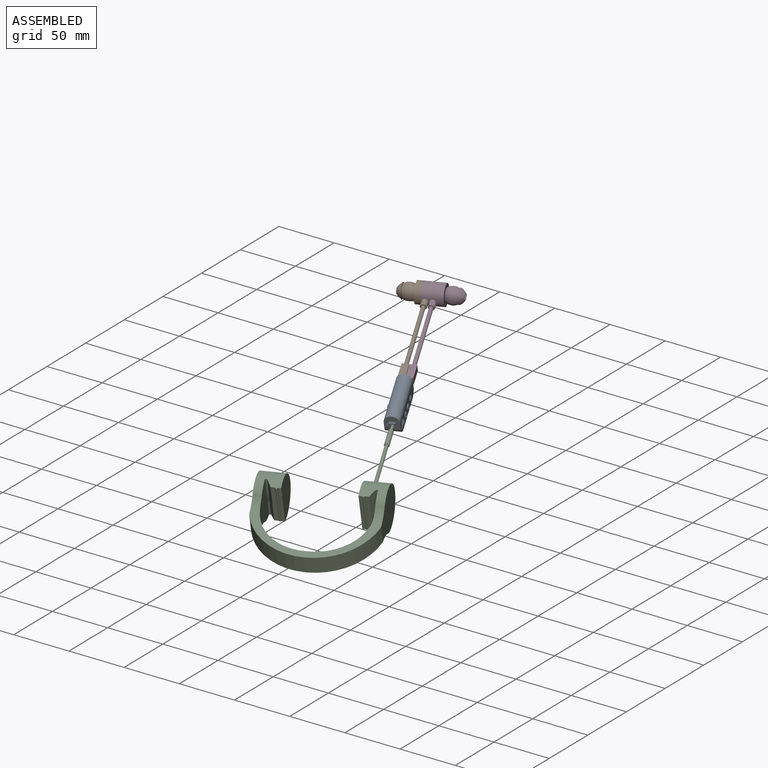
[diagram: assembled view]
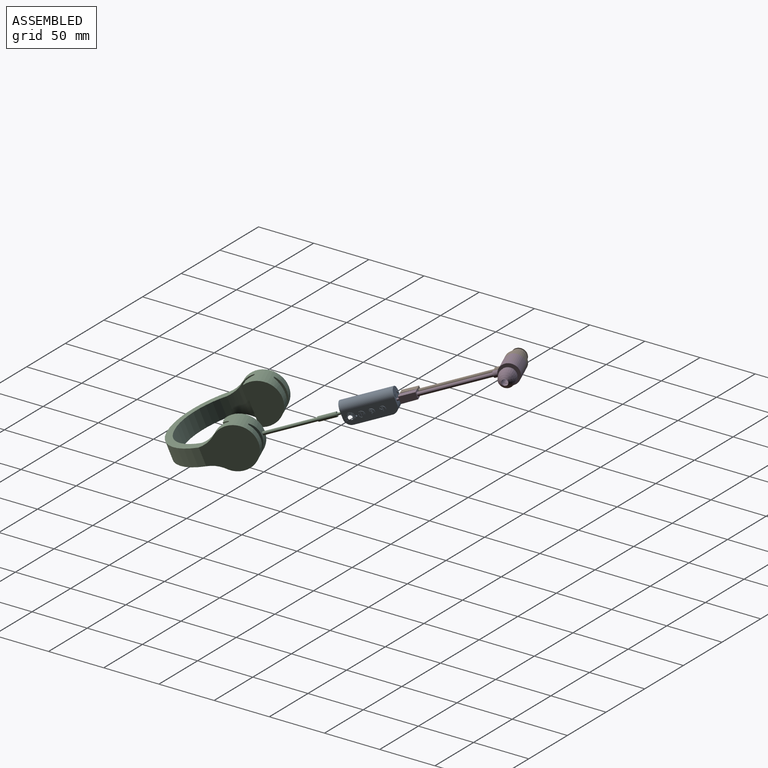
[diagram: assembled view, second angle]
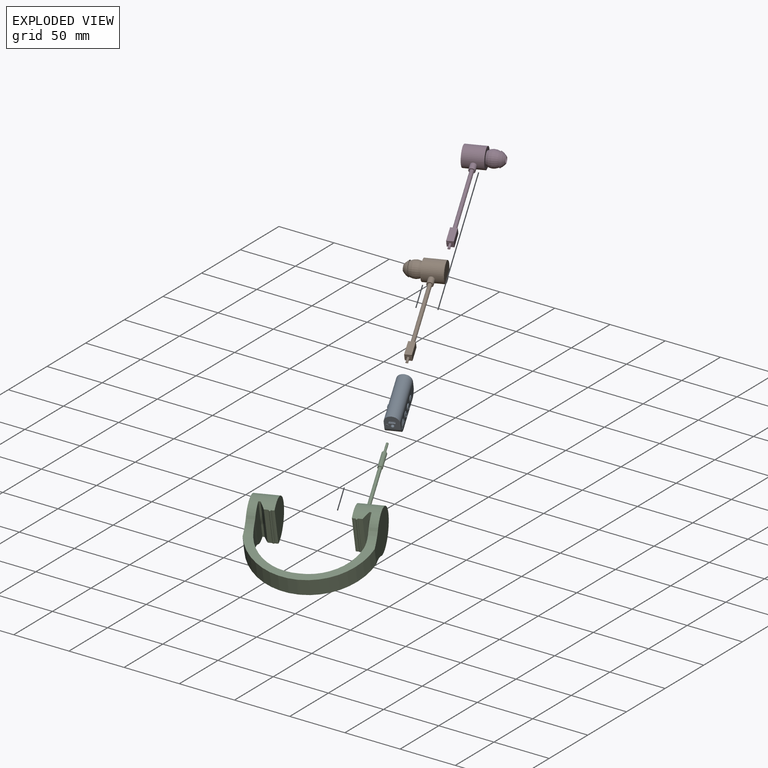
[diagram: exploded view]
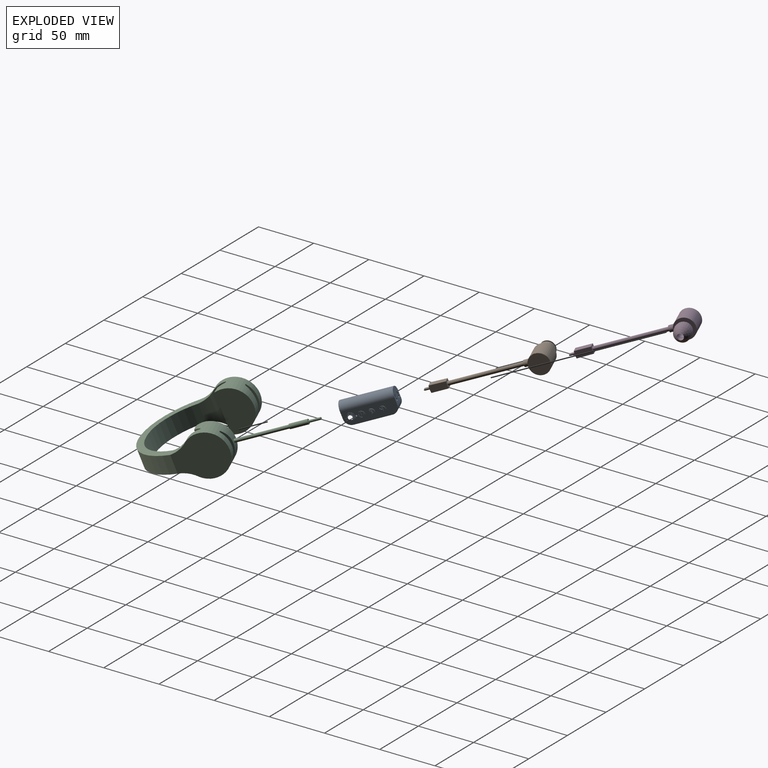
[diagram: exploded view, second angle]
ASSEMBLY  parts=4 mates=3
PART A: 240 faces, bbox 45.3x15.4x19.1 mm
  f0: plane 44.45x12.7mm, normal (0,1,0), area 521.5mm2, adj f2,f26,f27,f28,f29,f30,f219,f221
  f1: plane 44.45x12.7mm, normal (0,-1,0), area 446mm2, adj f2,f4,f5,f6,f7,f8,f9,f10
  f2: plane 12.7x12.7mm, normal (-1,0,0), area 125.9mm2, adj f0,f1,f28,f29,f150,f151,f152,f157
  f3: plane 3.99x3.99mm, normal (0,-1,0), area 11.4mm2, adj f115,f116,f117,f118,f119
  f4: cylinder r=2.75mm len=0.71mm, axis (0,1,0), area 0.2mm2, adj f1,f24,f112,f113
  f5: cylinder r=2.75mm len=0.71mm, axis (0,1,0), area 0.2mm2, adj f1,f24,f110,f111
  f6: cylinder r=2.75mm len=0.71mm, axis (0,1,0), area 0.2mm2, adj f1,f24,f108,f109
  f7: cylinder r=2.75mm len=0.71mm, axis (0,1,0), area 0.2mm2, adj f1,f24,f106,f107
  f8: cylinder r=2.75mm len=0.71mm, axis (0,1,0), area 0.2mm2, adj f1,f24,f104,f105
  f9: cylinder r=2.75mm len=0.71mm, axis (0,1,0), area 0.2mm2, adj f1,f24,f102,f103
  f10: cylinder r=2.75mm len=0.71mm, axis (0,1,0), area 0.2mm2, adj f1,f24,f100,f101
  f11: cylinder r=2.75mm len=0.71mm, axis (0,1,0), area 0.2mm2, adj f1,f24,f80,f99
  f12: cylinder r=2.75mm len=0.71mm, axis (0,1,0), area 0.2mm2, adj f1,f24,f96,f97
  f13: cylinder r=2.75mm len=0.71mm, axis (0,1,0), area 0.2mm2, adj f1,f24,f95,f114
  f14: cylinder r=2.75mm len=0.71mm, axis (0,1,0), area 0.2mm2, adj f1,f24,f93,f98
  f15: cylinder r=2.75mm len=0.71mm, axis (0,1,0), area 0.2mm2, adj f1,f24,f91,f94
  f16: cylinder r=2.75mm len=0.71mm, axis (0,1,0), area 0.2mm2, adj f1,f24,f88,f89
  f17: cylinder r=2.75mm len=0.71mm, axis (0,1,0), area 0.2mm2, adj f1,f24,f86,f87
  f18: cylinder r=2.75mm len=0.71mm, axis (0,1,0), area 0.2mm2, adj f1,f24,f84,f85
  f19: cylinder r=2.75mm len=0.71mm, axis (0,1,0), area 0.2mm2, adj f1,f24,f83,f92
  f20: cylinder r=2.75mm len=0.71mm, axis (0,1,0), area 0.2mm2, adj f1,f24,f78,f81
  f21: cylinder r=2.75mm len=0.71mm, axis (0,1,0), area 0.2mm2, adj f1,f24,f79,f82
  f22: cylinder r=2.75mm len=0.71mm, axis (0,1,0), area 0.2mm2, adj f1,f24,f76,f77
  f23: cylinder r=2.75mm len=0.71mm, axis (0,1,0), area 0.2mm2, adj f1,f24,f75,f90
  f24: plane 5.46x5.46mm, normal (0,-1,0), area 7.8mm2, adj f4,f5,f6,f7,f8,f9,f10,f11
  f25: plane 5.7x5.7mm, normal (0,-1,0), area 22.5mm2, adj f62,f63,f64,f65,f66,f68,f69,f70
  f26: plane 12.7x12.7mm, normal (1,0,0), area 134.1mm2, adj f0,f1,f28,f30,f31,f33,f35,f36
  f27: plane 31.75x12.7mm, normal (0,0,-1), area 403.2mm2, adj f0,f1,f29,f30
  f28: cylinder r=6.35mm len=44.45mm, axis (-1,0,0), area 886.7mm2, adj f0,f1,f2,f26
  f29: cylinder r=6.35mm len=12.7mm, axis (0,1,0), area 126.7mm2, adj f0,f1,f2,f27
  f30: cylinder r=6.35mm len=12.7mm, axis (0,1,0), area 126.7mm2, adj f0,f1,f26,f27
  f31: cylinder r=1.03mm len=10.16mm, axis (1,0,0), area 65.7mm2, adj f26,f32
  f32: plane 2.06x2.06mm, normal (1,0,0), area 3.3mm2, adj f31
  f33: cylinder r=1.03mm len=10.16mm, axis (1,0,0), area 65.7mm2, adj f26,f34
  f34: plane 2.06x2.06mm, normal (1,0,0), area 3.3mm2, adj f33
  f35: plane 2.22x0.51mm, normal (0,-1,0), area 1.1mm2, adj f26,f36,f40,f41
  f36: plane 1.24x0.51mm, normal (0,0,-1), area 0.6mm2, adj f26,f35,f37,f41
  f37: plane 0.51x0.23mm, normal (0,1,0), area 0.1mm2, adj f26,f36,f38,f41
  f38: plane 0.98x0.51mm, normal (0,0,1), area 0.5mm2, adj f26,f37,f39,f41
  f39: plane 1.98x0.51mm, normal (0,1,0), area 1mm2, adj f26,f38,f40,f41
  f40: plane 0.51x0.26mm, normal (0,0,1), area 0.1mm2, adj f26,f35,f39,f41
  f41: plane 2.22x1.24mm, normal (1,0,0), area 0.8mm2, adj f35,f36,f37,f38,f39,f40
  f42: plane 0.51x0.37mm, normal (0,0,1), area 0.2mm2, adj f43,f59,f60,f61
  f43: plane 0.9x0.51mm, normal (0,1,0), area 0.5mm2, adj f42,f44,f60,f61
  f44: plane 0.51x0.36mm, normal (0,0,-1), area 0.2mm2, adj f43,f45,f60,f61
  f45: extruded ~0.51x0.44mm, area 0.2mm2, adj f44,f46,f60,f61
  f46: extruded ~0.51x0.34mm, area 0.2mm2, adj f45,f47,f60,f61
  f47: extruded ~0.51x0.34mm, area 0.2mm2, adj f46,f59,f60,f61
  f48: plane 0.98x0.51mm, normal (0,1,0), area 0.5mm2, adj f26,f49,f58,f60
  f49: plane 0.51x0.49mm, normal (0,0,-1), area 0.2mm2, adj f26,f48,f50,f60
  f50: plane 0.98x0.57mm, normal (0,-0.86,-0.5), area 0.6mm2, adj f26,f49,f51,f60
  f51: plane 0.51x0.32mm, normal (0,0,-1), area 0.2mm2, adj f26,f50,f52,f60
  f52: plane 1.06x0.64mm, normal (0,0.86,0.52), area 0.6mm2, adj f26,f51,f53,f60
  f53: extruded ~0.63x0.51mm, area 0.4mm2, adj f26,f52,f54,f60
  f54: extruded ~0.51x0.5mm, area 0.3mm2, adj f26,f53,f55,f60
  f55: extruded ~0.64x0.51mm, area 0.3mm2, adj f26,f54,f56,f60
  f56: plane 0.64x0.51mm, normal (0,0,1), area 0.3mm2, adj f26,f55,f57,f60
  f57: plane 2.35x0.51mm, normal (0,-1,0), area 1.2mm2, adj f26,f56,f58,f60
  f58: plane 0.51x0.27mm, normal (0,0,-1), area 0.1mm2, adj f26,f48,f57,f60
  f59: extruded ~0.51x0.42mm, area 0.2mm2, adj f42,f47,f60,f61
  f60: plane 2.35x1.65mm, normal (1,0,0), area 1.7mm2, adj f42,f43,f44,f45,f46,f47,f48,f49
  f61: plane 0.93x0.9mm, normal (1,0,0), area 0.8mm2, adj f42,f43,f44,f45,f46,f47,f59
  f62: cylinder r=2.85mm len=5.7mm, axis (0,1,0), area 10mm2, adj f1,f25
  f63: plane 0.51x0.25mm, normal (0,0,1), area 0.1mm2, adj f25,f64,f66,f67
  f64: cylinder r=2.06mm len=4.13mm, axis (0,1,0), area 4.1mm2, adj f25,f63,f65,f67
  f65: plane 0.51x0.25mm, normal (0,0,1), area 0.1mm2, adj f25,f64,f66,f67
  f66: cylinder r=1.83mm len=3.66mm, axis (0,1,0), area 3.7mm2, adj f25,f63,f65,f67
  f67: plane 4.13x2.8mm, normal (0,-1,0), area 1.8mm2, adj f63,f64,f65,f66
  f68: plane 2.77x0.51mm, normal (-1,0,0), area 1.4mm2, adj f25,f69,f71,f72
  f69: plane 0.51x0.42mm, normal (0,0,-1), area 0.2mm2, adj f25,f68,f70,f72
  f70: plane 2.77x0.51mm, normal (1,0,0), area 1.4mm2, adj f25,f69,f71,f72
  f71: plane 0.51x0.42mm, normal (0,0,1), area 0.2mm2, adj f25,f68,f70,f72
  f72: plane 2.77x0.42mm, normal (0,-1,0), area 1.2mm2, adj f68,f69,f70,f71
  f73: cylinder r=0.71mm len=2.54mm, axis (0,-1,0), area 11.3mm2, adj f1,f74
  f74: plane 1.42x1.42mm, normal (0,-1,0), area 1.6mm2, adj f73
  f75: plane 0.71x0.54mm, normal (0.88,0,0.48), area 0.4mm2, adj f1,f23,f24,f76
  f76: plane 0.71x0.54mm, normal (-0.88,0,0.48), area 0.4mm2, adj f1,f22,f24,f75
  f77: plane 0.71x0.61mm, normal (0.98,0,0.19), area 0.4mm2, adj f1,f22,f24,f78
  f78: plane 0.71x0.45mm, normal (-0.68,0,0.73), area 0.4mm2, adj f1,f20,f24,f77
  f79: plane 0.71x0.56mm, normal (0.91,0,-0.42), area 0.4mm2, adj f1,f21,f24,f80
  f80: plane 0.71x0.61mm, normal (-0.12,0,0.99), area 0.4mm2, adj f1,f11,f24,f79
  f81: plane 0.71x0.61mm, normal (0.99,0,-0.12), area 0.4mm2, adj f1,f20,f24,f82
  f82: plane 0.71x0.56mm, normal (-0.42,0,0.91), area 0.4mm2, adj f1,f21,f24,f81
  f83: plane 0.71x0.61mm, normal (-0.19,0,0.98), area 0.4mm2, adj f1,f19,f24,f84
  f84: plane 0.71x0.45mm, normal (-0.73,0,-0.68), area 0.4mm2, adj f1,f18,f24,f83
  f85: plane 0.71x0.61mm, normal (0.12,0,0.99), area 0.4mm2, adj f1,f18,f24,f86
  f86: plane 0.71x0.56mm, normal (-0.91,0,-0.42), area 0.4mm2, adj f1,f17,f24,f85
  f87: plane 0.71x0.56mm, normal (0.42,0,0.91), area 0.4mm2, adj f1,f17,f24,f88
  f88: plane 0.71x0.61mm, normal (-0.99,0,-0.12), area 0.4mm2, adj f1,f16,f24,f87
  f89: plane 0.71x0.45mm, normal (0.68,0,0.73), area 0.4mm2, adj f1,f16,f24,f90
  f90: plane 0.71x0.61mm, normal (-0.98,0,0.19), area 0.4mm2, adj f1,f23,f24,f89
  f91: plane 0.71x0.54mm, normal (-0.48,0,0.88), area 0.4mm2, adj f1,f15,f24,f92
  f92: plane 0.71x0.54mm, normal (-0.48,0,-0.88), area 0.4mm2, adj f1,f19,f24,f91
  f93: plane 0.71x0.45mm, normal (-0.73,0,0.68), area 0.4mm2, adj f1,f14,f24,f94
  f94: plane 0.71x0.61mm, normal (-0.19,0,-0.98), area 0.4mm2, adj f1,f15,f24,f93
  f95: plane 0.71x0.61mm, normal (-0.99,0,0.12), area 0.4mm2, adj f1,f13,f24,f96
  f96: plane 0.71x0.56mm, normal (0.42,0,-0.91), area 0.4mm2, adj f1,f12,f24,f95
  f97: plane 0.71x0.56mm, normal (-0.91,0,0.42), area 0.4mm2, adj f1,f12,f24,f98
  f98: plane 0.71x0.61mm, normal (0.12,0,-0.99), area 0.4mm2, adj f1,f14,f24,f97
  f99: plane 0.71x0.45mm, normal (0.73,0,-0.68), area 0.4mm2, adj f1,f11,f24,f100
  f100: plane 0.71x0.61mm, normal (0.19,0,0.98), area 0.4mm2, adj f1,f10,f24,f99
  f101: plane 0.71x0.54mm, normal (0.48,0,-0.88), area 0.4mm2, adj f1,f10,f24,f102
  f102: plane 0.71x0.54mm, normal (0.48,0,0.88), area 0.4mm2, adj f1,f9,f24,f101
  f103: plane 0.71x0.61mm, normal (0.19,0,-0.98), area 0.4mm2, adj f1,f9,f24,f104
  f104: plane 0.71x0.45mm, normal (0.73,0,0.68), area 0.4mm2, adj f1,f8,f24,f103
  f105: plane 0.71x0.61mm, normal (-0.12,0,-0.99), area 0.4mm2, adj f1,f8,f24,f106
  f106: plane 0.71x0.56mm, normal (0.91,0,0.42), area 0.4mm2, adj f1,f7,f24,f105
  f107: plane 0.71x0.56mm, normal (-0.42,0,-0.91), area 0.4mm2, adj f1,f7,f24,f108
  f108: plane 0.71x0.61mm, normal (0.99,0,0.12), area 0.4mm2, adj f1,f6,f24,f107
  f109: plane 0.71x0.45mm, normal (-0.68,0,-0.73), area 0.4mm2, adj f1,f6,f24,f110
  f110: plane 0.71x0.61mm, normal (0.98,0,-0.19), area 0.4mm2, adj f1,f5,f24,f109
  f111: plane 0.71x0.54mm, normal (-0.88,0,-0.48), area 0.4mm2, adj f1,f5,f24,f112
  f112: plane 0.71x0.54mm, normal (0.88,0,-0.48), area 0.4mm2, adj f1,f4,f24,f111
  f113: plane 0.71x0.61mm, normal (-0.98,0,-0.19), area 0.4mm2, adj f1,f4,f24,f114
  f114: plane 0.71x0.45mm, normal (0.68,0,-0.73), area 0.4mm2, adj f1,f13,f24,f113
  f115: cylinder r=1.99mm len=3.99mm, axis (0,1,0), area 5.7mm2, adj f3,f24
  f116: plane 0.79x0.08mm, normal (0,0,1), area 0.1mm2, adj f3,f117,f119,f120
  f117: plane 1.32x0.08mm, normal (-1,0,0), area 0.1mm2, adj f3,f116,f118,f120
  f118: plane 0.79x0.08mm, normal (0,0,-1), area 0.1mm2, adj f3,f117,f119,f120
  f119: plane 1.32x0.08mm, normal (1,0,0), area 0.1mm2, adj f3,f116,f118,f120
  f120: plane 1.32x0.79mm, normal (0,-1,0), area 1mm2, adj f116,f117,f118,f119
  f121: plane 0.43x0.41mm, normal (0,0,1), area 0.2mm2, adj f1,f122,f130,f131
  f122: cylinder r=3.02mm len=6.04mm, axis (0,1,0), area 4.1mm2, adj f1,f121,f123,f131
  f123: plane 0.43x0.24mm, normal (0,0,1), area 0.1mm2, adj f1,f122,f124,f131
  f124: plane 0.97x0.52mm, normal (-0.88,0,-0.47), area 0.5mm2, adj f1,f123,f125,f131
  f125: plane 0.91x0.55mm, normal (0.85,0,-0.52), area 0.5mm2, adj f1,f124,f126,f131
  f126: plane 0.43x0.22mm, normal (0,0,1), area 0.1mm2, adj f1,f125,f127,f131
  f127: cylinder r=3.69mm len=7.38mm, axis (0,1,0), area 5mm2, adj f1,f126,f128,f131
  f128: plane 0.43x0.4mm, normal (0,0,1), area 0.2mm2, adj f1,f127,f129,f131
  f129: plane 0.96x0.75mm, normal (-0.79,0,-0.62), area 0.5mm2, adj f1,f128,f130,f131
  f130: plane 0.94x0.79mm, normal (0.77,0,-0.64), area 0.5mm2, adj f1,f121,f129,f131
  f131: plane 8x4.66mm, normal (0,-1,0), area 8.2mm2, adj f121,f122,f123,f124,f125,f126,f127,f128
  f132: plane 0.58x0.43mm, normal (0,0,1), area 0.3mm2, adj f1,f133,f143,f144
  f133: plane 0.48x0.43mm, normal (-1,0,0), area 0.2mm2, adj f1,f132,f134,f144
  f134: plane 0.44x0.43mm, normal (0,0,1), area 0.2mm2, adj f1,f133,f135,f144
  f135: plane 0.45x0.43mm, normal (-1,0,0), area 0.2mm2, adj f1,f134,f136,f144
  f136: plane 0.44x0.43mm, normal (0,0,-1), area 0.2mm2, adj f1,f135,f137,f144
  f137: plane 0.45x0.43mm, normal (-1,0,0), area 0.2mm2, adj f1,f136,f138,f144
  f138: plane 0.58x0.43mm, normal (0,0,-1), area 0.3mm2, adj f1,f137,f139,f144
  f139: plane 0.45x0.43mm, normal (1,0,0), area 0.2mm2, adj f1,f138,f140,f144
  f140: plane 0.47x0.43mm, normal (0,0,-1), area 0.2mm2, adj f1,f139,f141,f144
  f141: plane 0.45x0.43mm, normal (1,0,0), area 0.2mm2, adj f1,f140,f142,f144
  f142: plane 0.47x0.43mm, normal (0,0,1), area 0.2mm2, adj f1,f141,f143,f144
  f143: plane 0.48x0.43mm, normal (1,0,0), area 0.2mm2, adj f1,f132,f142,f144
  f144: plane 1.48x1.37mm, normal (0,-1,0), area 1.2mm2, adj f132,f133,f134,f135,f136,f137,f138,f139
  f145: plane 0.87x0.43mm, normal (0,0,1), area 0.4mm2, adj f1,f146,f148,f149
  f146: plane 0.43x0.4mm, normal (-1,0,0), area 0.2mm2, adj f1,f145,f147,f149
  f147: plane 0.87x0.43mm, normal (0,0,-1), area 0.4mm2, adj f1,f146,f148,f149
  f148: plane 0.43x0.4mm, normal (1,0,0), area 0.2mm2, adj f1,f145,f147,f149
  f149: plane 0.87x0.4mm, normal (0,-1,0), area 0.4mm2, adj f145,f146,f147,f148
  f150: plane 5.77x5.59mm, normal (0,0,-1), area 32.2mm2, adj f2,f151,f157,f158
  f151: plane 5.77x1.83mm, normal (0,-1,0), area 10.6mm2, adj f2,f150,f152,f158
  f152: plane 5.77x5.59mm, normal (0,0,1), area 32.2mm2, adj f2,f151,f157,f158
  f153: plane 5.77x0.45mm, normal (0,1,0), area 2.6mm2, adj f154,f156,f158,f159
  f154: plane 5.77x4.78mm, normal (0,0,1), area 27.6mm2, adj f153,f155,f158,f159
  f155: plane 5.77x0.45mm, normal (0,-1,0), area 2.6mm2, adj f154,f156,f158,f159
  f156: plane 5.77x4.78mm, normal (0,0,-1), area 27.6mm2, adj f153,f155,f158,f159
  f157: plane 5.77x1.83mm, normal (0,1,0), area 10.6mm2, adj f2,f150,f152,f158
  f158: plane 5.59x1.83mm, normal (-1,0,0), area 8.1mm2, adj f150,f151,f152,f153,f154,f155,f156,f157
  f159: plane 4.78x0.45mm, normal (-1,0,0), area 2.2mm2, adj f153,f154,f155,f156
  f160: cylinder r=1.4mm len=5.51mm, axis (-1,0,0), area 48.4mm2, adj f2,f161
  f161: plane 2.79x2.79mm, normal (-1,0,0), area 6.1mm2, adj f160
  f162: cylinder r=0.65mm len=1.31mm, axis (1,0,0), area 0.9mm2, adj f2,f163,f171,f172
  f163: plane 0.77x0.36mm, normal (0,1,0), area 0.3mm2, adj f2,f162,f164,f172
  f164: plane 0.51x0.36mm, normal (0,0,-1), area 0.2mm2, adj f2,f163,f165,f172
  f165: plane 0.77x0.36mm, normal (0,-1,0), area 0.3mm2, adj f2,f164,f166,f172
  f166: plane 0.36x0.25mm, normal (0,0,1), area 0.1mm2, adj f2,f165,f167,f172
  f167: cylinder r=0.92mm len=1.84mm, axis (1,0,0), area 1.2mm2, adj f2,f166,f168,f172
  f168: plane 0.36x0.25mm, normal (0,0,1), area 0.1mm2, adj f2,f167,f169,f172
  f169: plane 0.77x0.36mm, normal (0,1,0), area 0.3mm2, adj f2,f168,f170,f172
  f170: plane 0.51x0.36mm, normal (0,0,-1), area 0.2mm2, adj f2,f169,f171,f172
  f171: plane 0.77x0.36mm, normal (0,-1,0), area 0.3mm2, adj f2,f162,f170,f172
  f172: plane 2.26x1.97mm, normal (-1,0,0), area 1.7mm2, adj f162,f163,f164,f165,f166,f167,f168,f169
  f173: cylinder r=2.66mm len=5.32mm, axis (0,1,0), area 11.9mm2, adj f1,f174
  f174: plane 5.32x5.32mm, normal (0,-1,0), area 18mm2, adj f173,f175,f176,f177,f179,f180,f181,f182
  f175: plane 1.82x1.39mm, normal (0.61,0,0.79), area 1.2mm2, adj f174,f176,f177,f178
  f176: plane 2.78x0.51mm, normal (-1,0,0), area 1.4mm2, adj f174,f175,f177,f178
  f177: plane 1.82x1.39mm, normal (0.61,0,-0.79), area 1.2mm2, adj f174,f175,f176,f178
  f178: plane 2.78x1.82mm, normal (0,-1,0), area 2.5mm2, adj f175,f176,f177
  f179: plane 2.9x0.51mm, normal (-1,0,0), area 1.5mm2, adj f174,f180,f182,f183
  f180: plane 0.51x0.32mm, normal (0,0,-1), area 0.2mm2, adj f174,f179,f181,f183
  f181: plane 2.9x0.51mm, normal (1,0,0), area 1.5mm2, adj f174,f180,f182,f183
  f182: plane 0.51x0.32mm, normal (0,0,1), area 0.2mm2, adj f174,f179,f181,f183
  f183: plane 2.9x0.32mm, normal (0,-1,0), area 0.9mm2, adj f179,f180,f181,f182
  f184: plane 0.51x0.27mm, normal (0,0,1), area 0.1mm2, adj f174,f185,f187,f188
  f185: plane 2.89x0.51mm, normal (-1,0,0), area 1.5mm2, adj f174,f184,f186,f188
  f186: plane 0.51x0.27mm, normal (0,0,-1), area 0.1mm2, adj f174,f185,f187,f188
  f187: plane 2.89x0.51mm, normal (1,0,0), area 1.5mm2, adj f174,f184,f186,f188
  f188: plane 2.89x0.27mm, normal (0,-1,0), area 0.8mm2, adj f184,f185,f186,f187
  f189: cylinder r=2.64mm len=5.27mm, axis (0,1,0), area 13.6mm2, adj f1,f190
  f190: plane 5.27x5.27mm, normal (0,-1,0), area 16.6mm2, adj f189,f206,f207,f208,f209,f210,f211,f212
  f191: plane 0.13x0.07mm, normal (0,-1,0), area 0mm2, adj f194,f195,f196
  f192: plane 1.57x0.91mm, normal (0,-1,0), area 0.8mm2, adj f197,f198,f199,f200
  f193: plane 1.32x0.85mm, normal (0,-1,0), area 0.6mm2, adj f201,f202,f203,f204
  f194: plane 1.19x0.07mm, normal (-0.67,0,0.75), area 0.1mm2, adj f191,f195,f196,f205
  f195: plane 1.19x0.07mm, normal (-0.65,0,-0.76), area 0.1mm2, adj f191,f194,f196,f205
  f196: plane 1.19x0.13mm, normal (1,0,0), area 0.2mm2, adj f191,f194,f195,f205
  f197: plane 1.19x0.59mm, normal (-0.65,0,-0.76), area 0.9mm2, adj f192,f198,f200,f205
  f198: plane 1.19x0.33mm, normal (0.66,0,-0.75), area 0.5mm2, adj f192,f197,f199,f205
  f199: plane 1.28x1.19mm, normal (1,0,0), area 1.5mm2, adj f192,f198,f200,f205
  f200: plane 1.19x1.06mm, normal (-0.76,0,0.65), area 1.7mm2, adj f192,f197,f199,f205
  f201: plane 1.19x0.29mm, normal (0.65,0,0.76), area 0.5mm2, adj f193,f202,f204,f205
  f202: plane 1.19x0.56mm, normal (-0.67,0,0.75), area 0.9mm2, adj f193,f201,f203,f205
  f203: plane 1.19x0.85mm, normal (-0.69,0,-0.72), area 1.4mm2, adj f193,f202,f204,f205
  f204: plane 1.19x1.08mm, normal (1,0,0), area 1.3mm2, adj f193,f201,f203,f205
  f205: plane 4.77x2.7mm, normal (0,-1,0), area 3.9mm2, adj f194,f195,f196,f197,f198,f199,f200,f201
  f206: plane 1.1x0.94mm, normal (0.65,0,0.76), area 0.5mm2, adj f190,f205,f207,f217
  f207: plane 1.55x0.37mm, normal (-1,0,0), area 0.6mm2, adj f190,f205,f206,f208
  f208: plane 1.59x1.54mm, normal (0.69,0,0.72), area 0.8mm2, adj f190,f205,f207,f209
  f209: plane 0.79x0.7mm, normal (0.66,0,-0.75), area 0.4mm2, adj f190,f205,f208,f210
  f210: plane 0.79x0.68mm, normal (0.65,0,0.76), area 0.4mm2, adj f190,f205,f209,f211
  f211: plane 1.86x1.59mm, normal (0.76,0,-0.65), area 0.9mm2, adj f190,f205,f210,f212
  f212: plane 1.82x0.37mm, normal (-1,0,0), area 0.7mm2, adj f190,f205,f211,f213
  f213: plane 1.1x0.98mm, normal (0.66,0,-0.75), area 0.5mm2, adj f190,f205,f212,f214
  f214: plane 0.43x0.37mm, normal (-1,0,0), area 0.2mm2, adj f190,f205,f213,f215
  f215: plane 1.1x0.98mm, normal (-0.67,0,0.75), area 0.5mm2, adj f190,f205,f214,f218
  f216: plane 1.1x0.94mm, normal (-0.65,0,-0.76), area 0.5mm2, adj f190,f205,f217,f218
  f217: plane 0.38x0.37mm, normal (-1,0,0), area 0.1mm2, adj f190,f205,f206,f216
  f218: plane 0.6x0.37mm, normal (-1,0,0), area 0.2mm2, adj f190,f205,f215,f216
  f219: cylinder r=1.48mm len=2.96mm, axis (0,1,0), area 25.8mm2, adj f0,f220
  f220: plane 2.96x2.96mm, normal (0,1,0), area 6.9mm2, adj f219
  f221: plane 1.45x0.04mm, normal (0,0,1), area 0.1mm2, adj f0,f222,f233,f234
  f222: plane 2.62x1.45mm, normal (-1,0,0), area 3.8mm2, adj f0,f221,f223,f234
  f223: plane 1.45x0.58mm, normal (0,0,1), area 0.8mm2, adj f0,f222,f224,f234
  f224: plane 1.45x0.59mm, normal (-1,0,0), area 0.9mm2, adj f0,f223,f225,f234
  f225: plane 1.76x1.45mm, normal (0,0,-1), area 2.5mm2, adj f0,f224,f226,f234
  f226: plane 1.45x0.59mm, normal (1,0,0), area 0.9mm2, adj f0,f225,f227,f234
  f227: plane 1.45x0.47mm, normal (0,0,1), area 0.7mm2, adj f0,f226,f228,f234
  f228: plane 2.62x1.45mm, normal (1,0,0), area 3.8mm2, adj f0,f227,f229,f234
  f229: cylinder r=2.45mm len=2.82mm, axis (0,-1,0), area 5.7mm2, adj f0,f228,f230,f234
  f230: plane 1.45x0.62mm, normal (0,0,1), area 0.9mm2, adj f0,f229,f231,f234
  f231: cylinder r=1.81mm len=3.62mm, axis (0,-1,0), area 9.5mm2, adj f0,f230,f232,f234
  f232: plane 1.45x0.7mm, normal (0,0,1), area 1mm2, adj f0,f231,f233,f234
  f233: cylinder r=2.45mm len=2.88mm, axis (0,-1,0), area 5.8mm2, adj f0,f221,f232,f234
  f234: plane 6.1x4.9mm, normal (0,1,0), area 7.7mm2, adj f221,f222,f223,f224,f225,f226,f227,f228
  f235: plane 4.22x1.45mm, normal (1,0,0), area 6.1mm2, adj f0,f236,f238,f239
  f236: plane 2.63x1.45mm, normal (0,0,1), area 3.8mm2, adj f0,f235,f237,f239
  f237: plane 4.22x1.45mm, normal (-1,0,0), area 6.1mm2, adj f0,f236,f238,f239
  f238: plane 2.63x1.45mm, normal (0,0,-1), area 3.8mm2, adj f0,f235,f237,f239
  f239: plane 4.22x2.63mm, normal (0,1,0), area 11.1mm2, adj f235,f236,f237,f238
PART B: 32 faces, bbox 19.6x34.3x106.9 mm
  f0: plane 5.87x0.11mm, normal (-1,0,0), area 0.6mm2, adj f1,f21,f27,f29
  f1: plane 14.28x6.24mm, normal (0,1,0), area 87mm2, adj f0,f21,f22,f23,f24,f25,f26,f29
  f2: plane 5.46x5.46mm, normal (0,-1,0), area 2.5mm2, adj f7,f9
  f3: cylinder r=5.74mm len=11.48mm, axis (0,1,0), area 334.2mm2, adj f8,f15,f17
  f4: cylinder r=9.08mm len=18.17mm, axis (0,1,0), area 994.7mm2, adj f5,f6,f18
  f5: plane 18.18x18.18mm, normal (0,-1,0), area 155.8mm2, adj f4,f12
  f6: plane 18.17x18.17mm, normal (0,1,0), area 7.5mm2, adj f4,f14
  f7: cylinder r=2.58mm len=18.8mm, axis (0,1,0), area 304.6mm2, adj f2,f8
  f8: plane 11.48x11.22mm, normal (0,1,0), area 81.6mm2, adj f3,f7,f16,f17
  f9: cylinder r=2.73mm len=5.46mm, axis (0,1,0), area 75.3mm2, adj f2,f11
  f10: plane 13.18x13.18mm, normal (0,1,0), area 32.8mm2, adj f11,f12
  f11: revolved ~13.18x13.18mm, area 0mm2, adj f9,f10
  f12: revolved ~14.72x14.72mm, area 473.9mm2, adj f5,f10
  f13: plane 17.91x17.91mm, normal (0,1,0), area 251.8mm2, adj f14
  f14: cylinder r=8.95mm len=17.91mm, axis (0,1,0), area 14.3mm2, adj f6,f13
  f15: plane 11.48x11.48mm, normal (0,-1,0), area 103.5mm2, adj f3
  f16: plane 3.44x1.72mm, normal (0,0,1), area 4.6mm2, adj f8,f17
  f17: cylinder r=1.72mm len=3.44mm, axis (0,0,1), area 1.3mm2, adj f3,f8,f16
  f18: cylinder r=2.78mm len=5.86mm, axis (0,0,1), area 96.8mm2, adj f4,f19
  f19: plane 5.57x5.57mm, normal (0,0,-1), area 15.1mm2, adj f18,f20
  f20: cylinder r=1.72mm len=62.23mm, axis (0,0,1), area 672.3mm2, adj f19,f25
  f21: plane 5.87x1.34mm, normal (0,0,-1), area 7.9mm2, adj f0,f1,f26,f27
  f22: plane 5.87x0.11mm, normal (1,0,0), area 0.6mm2, adj f1,f23,f27,f29
  f23: plane 5.87x1.69mm, normal (0,0,-1), area 9.9mm2, adj f1,f22,f24,f27
  f24: plane 14.17x5.87mm, normal (1,0,0.02), area 83.1mm2, adj f1,f23,f25,f27
  f25: plane 6x5.87mm, normal (0,0,1), area 25.9mm2, adj f1,f20,f24,f26,f27
  f26: plane 14.17x5.87mm, normal (-1,0,0), area 83.1mm2, adj f1,f21,f25,f27
  f27: plane 14.28x6.24mm, normal (0,-1,0), area 87mm2, adj f0,f21,f22,f23,f24,f25,f26,f29
  f28: cylinder r=1.02mm len=5.35mm, axis (0,0,1), area 33.2mm2, adj f29,f30,f31
  f29: plane 5.87x3.2mm, normal (0,0,-1), area 15.5mm2, adj f0,f1,f22,f27,f28
  f30: plane 2.37x1.35mm, normal (0.6,0,-0.8), area 2.1mm2, adj f28,f31
  f31: plane 3.49x2.46mm, normal (-0.57,0,-0.82), area 2mm2, adj f28,f30
PART C: 41 faces, bbox 100.6x37.7x155 mm
  f0: cylinder r=18.83mm len=37.65mm, axis (-1,0,0), area 1452.1mm2, adj f4,f7,f8,f17,f18,f19,f20,f21
  f1: plane 15.82x1.44mm, normal (0,0,1), area 22.8mm2, adj f2,f3,f33,f34
  f2: plane 100.58x38.65mm, normal (0,1,0), area 841.8mm2, adj f1,f7,f9,f25,f26,f33,f34
  f3: plane 100.58x38.65mm, normal (0,-1,0), area 841.8mm2, adj f1,f8,f10,f25,f26,f33,f34
  f4: plane 45.61x37.65mm, normal (1,0,0), area 1277.3mm2, adj f0,f7,f8,f34
  f5: plane 45.61x37.65mm, normal (-1,0,0), area 1277.3mm2, adj f6,f9,f10,f33
  f6: cylinder r=18.83mm len=37.65mm, axis (-1,0,0), area 1459.2mm2, adj f5,f9,f10,f11,f12,f13,f14,f15
  f7: cylinder r=25.4mm len=13.24mm, axis (-1,0,0), area 105.5mm2, adj f0,f2,f4,f25
  f8: cylinder r=25.4mm len=15.47mm, axis (-1,0,0), area 126mm2, adj f0,f3,f4,f24,f25
  f9: cylinder r=25.4mm len=13.24mm, axis (-1,0,0), area 105.5mm2, adj f2,f5,f6,f26
  f10: cylinder r=25.4mm len=15.47mm, axis (-1,0,0), area 126mm2, adj f3,f5,f6,f23,f26
  f11: plane 37.65x1.69mm, normal (0,0,1), area 63.7mm2, adj f6,f12,f23
  f12: plane 37.72x6.66mm, normal (-0.87,0,0.5), area 280.9mm2, adj f6,f11,f13
  f13: plane 35.27x3.69mm, normal (0,0,1), area 130.1mm2, adj f6,f12,f14
  f14: cylinder r=0.84mm len=35.27mm, axis (0,-1,0), area 91.8mm2, adj f6,f13,f15
  f15: cylinder r=5.22mm len=35.27mm, axis (0,-1,0), area 100.1mm2, adj f6,f14,f16
  f16: plane 37.65x25.42mm, normal (1,0,0), area 799.9mm2, adj f6,f15
  f17: plane 37.65x25.42mm, normal (-1,0,0), area 799.9mm2, adj f0,f18
  f18: cylinder r=5.22mm len=35.27mm, axis (0,-1,0), area 100.1mm2, adj f0,f17,f19
  f19: cylinder r=0.84mm len=35.27mm, axis (0,-1,0), area 91.8mm2, adj f0,f18,f20
  f20: plane 35.27x3.69mm, normal (0,0,1), area 130.1mm2, adj f0,f19,f21
  f21: plane 37.72x6.66mm, normal (0.87,0,0.5), area 280.9mm2, adj f0,f20,f22
  f22: plane 37.65x1.69mm, normal (0,0,1), area 63.7mm2, adj f0,f21,f24
  f23: plane 37.65x13.55mm, normal (1,0,0), area 461.7mm2, adj f6,f10,f11,f26
  f24: plane 37.65x13.55mm, normal (-1,0,0), area 461.7mm2, adj f0,f8,f22,f25
  f25: cylinder r=41.89mm len=45.37mm, axis (0,-1,0), area 1167.6mm2, adj f2,f3,f7,f8,f24,f26
  f26: cylinder r=41.89mm len=45.37mm, axis (0,-1,0), area 1167.6mm2, adj f2,f3,f9,f10,f23,f25
  f27: plane 26.28x5.34mm, normal (-0.87,0,-0.5), area 111.7mm2, adj f6,f28
  f28: plane 26.28x1.69mm, normal (0,0,-1), area 44.4mm2, adj f6,f27,f29
  f29: plane 26.28x5.34mm, normal (1,0,0), area 96.7mm2, adj f6,f28
  f30: plane 26.28x5.34mm, normal (-1,0,0), area 96.7mm2, adj f0,f31
  f31: plane 26.28x1.69mm, normal (0,0,-1), area 44.4mm2, adj f0,f30,f32
  f32: plane 26.28x5.34mm, normal (0.87,0,-0.5), area 111.7mm2, adj f0,f31
  f33: cylinder r=52.04mm len=49.57mm, axis (0,-1,0), area 1067.9mm2, adj f1,f2,f3,f5
  f34: cylinder r=52.04mm len=49.57mm, axis (0,-1,0), area 1067.9mm2, adj f1,f2,f3,f4
  f35: cylinder r=1.51mm len=44.93mm, axis (0,0,-1), area 425.2mm2, adj f0,f38
  f36: cylinder r=2.1mm len=15.49mm, axis (0,0,1), area 204.8mm2, adj f37,f38
  f37: plane 4.21x4.21mm, normal (0,0,-1), area 10.6mm2, adj f36,f39
  f38: plane 4.21x4.21mm, normal (0,0,1), area 6.8mm2, adj f35,f36
  f39: cylinder r=1.03mm len=10.21mm, axis (0,0,-1), area 66mm2, adj f37,f40
  f40: plane 2.06x2.06mm, normal (0,0,-1), area 3.3mm2, adj f39
PART D: same geometry as B
PLACE A rot(axis=(0.18,-0.12,0.98),113.3deg) t=(104.57,81.02,14.21)mm
PLACE B rot(axis=(-0.43,-0.64,-0.63),93.8deg) t=(78.54,154.23,54.22)mm
PLACE C rot(axis=(0.97,0.19,0.13),112.4deg) t=(110.66,-4.97,-7.53)mm
PLACE D rot(axis=(-0.53,0.36,0.77),125.1deg) t=(84.21,156.52,54.22)mm
MATE fastened A.f33 <-> D.f28  axis (-0.35,0.87,0.36) through (99.03,119.85,39.03)mm
MATE fastened C.f36 <-> A.f160  axis (-0.35,0.87,0.36) through (111.74,80.4,22.7)mm
MATE fastened B.f28 <-> A.f31  axis (-0.35,0.87,0.36) through (93.36,117.56,39.03)mm
